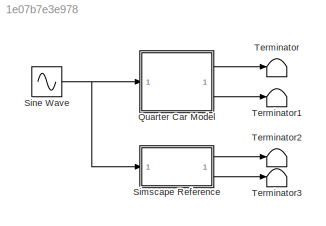
MODEL slx_1e07b7e3e978
KIND model
CONFIG AbsTol = auto
CONFIG EnableMultiTasking = off
CONFIG FixedStep = auto
CONFIG MaxStep = auto
CONFIG MinStep = auto
CONFIG RelTol = 1e-3
CONFIG SampleTimeConstraint = Unconstrained
CONFIG SolverName = VariableStepAuto
CONFIG StartTime = 0.0
CONFIG StopTime = 10.0
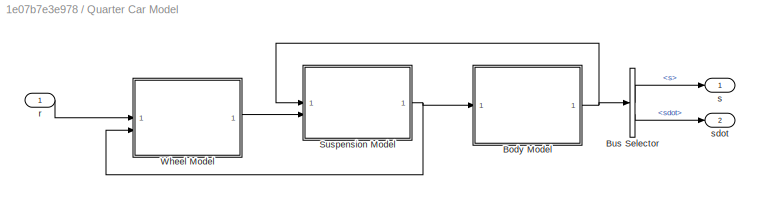
BLOCK [SubSystem] Quarter Car Model
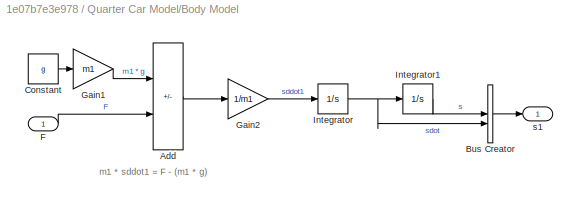
BLOCK [SubSystem] Quarter Car Model/Body Model
BLOCK [Sum] Quarter Car Model/Body Model/Add
  IconShape = rectangular
  Inputs = -+
BLOCK [BusCreator] Quarter Car Model/Body Model/Bus Creator
  DisplayOption = bar
  InheritFromInputs = on
  Inputs = 2
BLOCK [Constant] Quarter Car Model/Body Model/Constant
  Value = g
BLOCK [Inport] Quarter Car Model/Body Model/F
BLOCK [Gain] Quarter Car Model/Body Model/Gain1
  Gain = m1
BLOCK [Gain] Quarter Car Model/Body Model/Gain2
  Gain = 1/m1
BLOCK [Integrator] Quarter Car Model/Body Model/Integrator
BLOCK [Integrator] Quarter Car Model/Body Model/Integrator1
BLOCK [Outport] Quarter Car Model/Body Model/s1
BLOCK [BusSelector] Quarter Car Model/Bus Selector
  OutputSignals = s,sdot
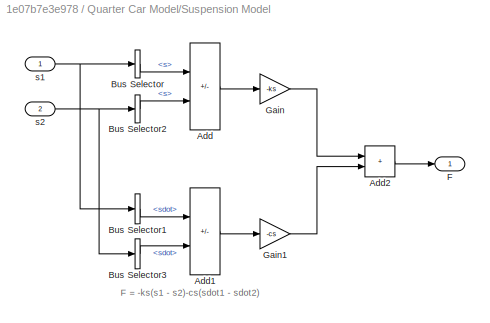
BLOCK [SubSystem] Quarter Car Model/Suspension Model
BLOCK [Sum] Quarter Car Model/Suspension Model/Add
  IconShape = rectangular
  Inputs = +-
BLOCK [Sum] Quarter Car Model/Suspension Model/Add1
  IconShape = rectangular
  Inputs = +-
BLOCK [Sum] Quarter Car Model/Suspension Model/Add2
  IconShape = rectangular
BLOCK [BusSelector] Quarter Car Model/Suspension Model/Bus Selector
  OutputSignals = s
BLOCK [BusSelector] Quarter Car Model/Suspension Model/Bus Selector1
  OutputSignals = sdot
BLOCK [BusSelector] Quarter Car Model/Suspension Model/Bus Selector2
  OutputSignals = s
BLOCK [BusSelector] Quarter Car Model/Suspension Model/Bus Selector3
  OutputSignals = sdot
BLOCK [Outport] Quarter Car Model/Suspension Model/F
BLOCK [Gain] Quarter Car Model/Suspension Model/Gain
  Gain = -ks
BLOCK [Gain] Quarter Car Model/Suspension Model/Gain1
  Gain = -cs
BLOCK [Inport] Quarter Car Model/Suspension Model/s1
BLOCK [Inport] Quarter Car Model/Suspension Model/s2
  Port = 2
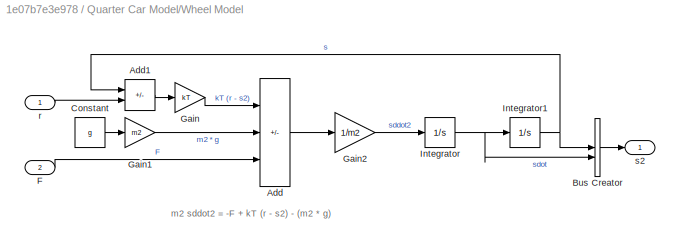
BLOCK [SubSystem] Quarter Car Model/Wheel Model
BLOCK [Sum] Quarter Car Model/Wheel Model/Add
  IconShape = rectangular
  Inputs = +--
BLOCK [Sum] Quarter Car Model/Wheel Model/Add1
  IconShape = rectangular
  Inputs = -+
BLOCK [BusCreator] Quarter Car Model/Wheel Model/Bus Creator
  DisplayOption = bar
  InheritFromInputs = on
  Inputs = 2
BLOCK [Constant] Quarter Car Model/Wheel Model/Constant
  Value = g
BLOCK [Inport] Quarter Car Model/Wheel Model/F
  Port = 2
BLOCK [Gain] Quarter Car Model/Wheel Model/Gain
  Gain = kT
BLOCK [Gain] Quarter Car Model/Wheel Model/Gain1
  Gain = m2
BLOCK [Gain] Quarter Car Model/Wheel Model/Gain2
  Gain = 1/m2
BLOCK [Integrator] Quarter Car Model/Wheel Model/Integrator
BLOCK [Integrator] Quarter Car Model/Wheel Model/Integrator1
BLOCK [Inport] Quarter Car Model/Wheel Model/r
BLOCK [Outport] Quarter Car Model/Wheel Model/s2
BLOCK [Inport] Quarter Car Model/r
BLOCK [Outport] Quarter Car Model/s
BLOCK [Outport] Quarter Car Model/sdot
  Port = 2
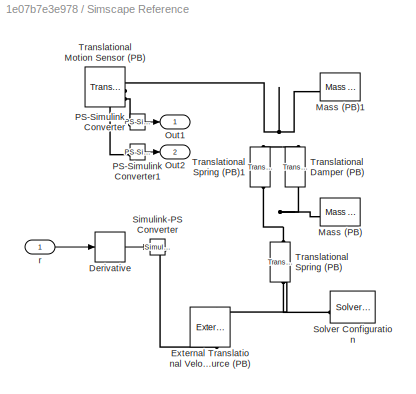
BLOCK [SubSystem] Simscape Reference
BLOCK [Derivative] Simscape Reference/Derivative
BLOCK [Reference] Simscape Reference/External Translational Velocity Source (PB)  REF=fl_lib/Translational/Sources/External
Translational
Velocity Source (PB)
  NameLocation = right
  SourceBlock = fl_lib/Translational/Sources/External\nTranslational\nVelocity Source (PB)
  SourceType = External\nTranslational\nVelocity Source (PB)
BLOCK [Reference] Simscape Reference/Mass (PB)  REF=fl_lib/Translational/Elements/Mass (PB)
  SourceBlock = fl_lib/Translational/Elements/Mass (PB)
  SourceType = Mass (PB)
BLOCK [Reference] Simscape Reference/Mass (PB)1  REF=fl_lib/Translational/Elements/Mass (PB)
  SourceBlock = fl_lib/Translational/Elements/Mass (PB)
  SourceType = Mass (PB)
BLOCK [Outport] Simscape Reference/Out1
BLOCK [Outport] Simscape Reference/Out2
  Port = 2
BLOCK [Reference] Simscape Reference/PS-Simulink Converter  REF=nesl_utility/PS-Simulink
Converter
  SourceBlock = nesl_utility/PS-Simulink\nConverter
  SourceType = PS-Simulink\nConverter
BLOCK [Reference] Simscape Reference/PS-Simulink Converter1  REF=nesl_utility/PS-Simulink
Converter
  SourceBlock = nesl_utility/PS-Simulink\nConverter
  SourceType = PS-Simulink\nConverter
BLOCK [Reference] Simscape Reference/Simulink-PS Converter  REF=nesl_utility/Simulink-PS
Converter
  SourceBlock = nesl_utility/Simulink-PS\nConverter
  SourceType = Simulink-PS\nConverter
BLOCK [Reference] Simscape Reference/Solver Configuration  REF=nesl_utility/Solver
Configuration
  NameLocation = top
  SourceBlock = nesl_utility/Solver\nConfiguration
  SourceType = Solver\nConfiguration
BLOCK [Reference] Simscape Reference/Translational Damper (PB)  REF=fl_lib/Translational/Elements/Translational Damper
(PB)
  NameLocation = left
  SourceBlock = fl_lib/Translational/Elements/Translational Damper\n(PB)
  SourceType = Translational Damper\n(PB)
BLOCK [Reference] Simscape Reference/Translational Motion Sensor (PB)  REF=fl_lib/Translational/Sensors/Translational Motion
Sensor (PB)
  SourceBlock = fl_lib/Translational/Sensors/Translational Motion\nSensor (PB)
  SourceType = Translational Motion\nSensor (PB)
BLOCK [Reference] Simscape Reference/Translational Spring (PB)  REF=fl_lib/Translational/Elements/Translational Spring
(PB)
  NameLocation = left
  SourceBlock = fl_lib/Translational/Elements/Translational Spring\n(PB)
  SourceType = Translational Spring\n(PB)
BLOCK [Reference] Simscape Reference/Translational Spring (PB)1  REF=fl_lib/Translational/Elements/Translational Spring
(PB)
  NameLocation = left
  SourceBlock = fl_lib/Translational/Elements/Translational Spring\n(PB)
  SourceType = Translational Spring\n(PB)
BLOCK [Inport] Simscape Reference/r
BLOCK [Sin] Sine Wave
  SampleTime = 0
BLOCK [Terminator] Terminator
BLOCK [Terminator] Terminator1
BLOCK [Terminator] Terminator2
BLOCK [Terminator] Terminator3
ANNOTATION Quarter Car Model/Body Model: m1 * sddot1 = F - (m1 * g)
ANNOTATION Quarter Car Model/Suspension Model: F = -ks(s1 - s2)-cs(sdot1 - sdot2)
ANNOTATION Quarter Car Model/Wheel Model: m2 sddot2 = -F + kT (r - s2) - (m2 * g)
LINE Quarter Car Model/Body Model/Add:1 -> Quarter Car Model/Body Model/Gain2:1
LINE Quarter Car Model/Body Model/Bus Creator:1 -> Quarter Car Model/Body Model/s1:1
LINE Quarter Car Model/Body Model/Constant:1 -> Quarter Car Model/Body Model/Gain1:1
LINE Quarter Car Model/Body Model/F:1 -> Quarter Car Model/Body Model/Add:2
LINE Quarter Car Model/Body Model/Gain1:1 -> Quarter Car Model/Body Model/Add:1
LINE Quarter Car Model/Body Model/Gain2:1 -> Quarter Car Model/Body Model/Integrator:1
LINE Quarter Car Model/Body Model/Integrator1:1 -> Quarter Car Model/Body Model/Bus Creator:1
NET Quarter Car Model/Body Model/Integrator:1 -> Quarter Car Model/Body Model/Bus Creator:2, Quarter Car Model/Body Model/Integrator1:1
NET Quarter Car Model/Body Model:1 -> Quarter Car Model/Bus Selector:1, Quarter Car Model/Suspension Model:1
LINE Quarter Car Model/Bus Selector:1 -> Quarter Car Model/s:1
LINE Quarter Car Model/Bus Selector:2 -> Quarter Car Model/sdot:1
LINE Quarter Car Model/Suspension Model/Add1:1 -> Quarter Car Model/Suspension Model/Gain1:1
LINE Quarter Car Model/Suspension Model/Add2:1 -> Quarter Car Model/Suspension Model/F:1
LINE Quarter Car Model/Suspension Model/Add:1 -> Quarter Car Model/Suspension Model/Gain:1
LINE Quarter Car Model/Suspension Model/Bus Selector1:1 -> Quarter Car Model/Suspension Model/Add1:1
LINE Quarter Car Model/Suspension Model/Bus Selector2:1 -> Quarter Car Model/Suspension Model/Add:2
LINE Quarter Car Model/Suspension Model/Bus Selector3:1 -> Quarter Car Model/Suspension Model/Add1:2
LINE Quarter Car Model/Suspension Model/Bus Selector:1 -> Quarter Car Model/Suspension Model/Add:1
LINE Quarter Car Model/Suspension Model/Gain1:1 -> Quarter Car Model/Suspension Model/Add2:2
LINE Quarter Car Model/Suspension Model/Gain:1 -> Quarter Car Model/Suspension Model/Add2:1
NET Quarter Car Model/Suspension Model/s1:1 -> Quarter Car Model/Suspension Model/Bus Selector1:1, Quarter Car Model/Suspension Model/Bus Selector:1
NET Quarter Car Model/Suspension Model/s2:1 -> Quarter Car Model/Suspension Model/Bus Selector2:1, Quarter Car Model/Suspension Model/Bus Selector3:1
NET Quarter Car Model/Suspension Model:1 -> Quarter Car Model/Body Model:1, Quarter Car Model/Wheel Model:2
LINE Quarter Car Model/Wheel Model/Add1:1 -> Quarter Car Model/Wheel Model/Gain:1
LINE Quarter Car Model/Wheel Model/Add:1 -> Quarter Car Model/Wheel Model/Gain2:1
LINE Quarter Car Model/Wheel Model/Bus Creator:1 -> Quarter Car Model/Wheel Model/s2:1
LINE Quarter Car Model/Wheel Model/Constant:1 -> Quarter Car Model/Wheel Model/Gain1:1
LINE Quarter Car Model/Wheel Model/F:1 -> Quarter Car Model/Wheel Model/Add:3
LINE Quarter Car Model/Wheel Model/Gain1:1 -> Quarter Car Model/Wheel Model/Add:2
LINE Quarter Car Model/Wheel Model/Gain2:1 -> Quarter Car Model/Wheel Model/Integrator:1
LINE Quarter Car Model/Wheel Model/Gain:1 -> Quarter Car Model/Wheel Model/Add:1
NET Quarter Car Model/Wheel Model/Integrator1:1 -> Quarter Car Model/Wheel Model/Add1:1, Quarter Car Model/Wheel Model/Bus Creator:1
NET Quarter Car Model/Wheel Model/Integrator:1 -> Quarter Car Model/Wheel Model/Bus Creator:2, Quarter Car Model/Wheel Model/Integrator1:1
LINE Quarter Car Model/Wheel Model/r:1 -> Quarter Car Model/Wheel Model/Add1:2
LINE Quarter Car Model/Wheel Model:1 -> Quarter Car Model/Suspension Model:2
LINE Quarter Car Model/r:1 -> Quarter Car Model/Wheel Model:1
LINE Quarter Car Model:1 -> Terminator:1
LINE Quarter Car Model:2 -> Terminator1:1
LINE Simscape Reference/Derivative:1 -> Simscape Reference/Simulink-PS Converter:1
LINE Simscape Reference/PS-Simulink Converter1:1 -> Simscape Reference/Out2:1
LINE Simscape Reference/PS-Simulink Converter:1 -> Simscape Reference/Out1:1
LINE Simscape Reference/r:1 -> Simscape Reference/Derivative:1
LINE Simscape Reference:1 -> Terminator2:1
LINE Simscape Reference:2 -> Terminator3:1
NET Sine Wave:1 -> Quarter Car Model:1, Simscape Reference:1
PLINE Simscape Reference/External Translational Velocity Source (PB):LConn1 -- Simscape Reference/Simulink-PS Converter:RConn1
PNET net1: Simscape Reference/External Translational Velocity Source (PB):RConn1 -- Simscape Reference/Solver Configuration:RConn1 -- Simscape Reference/Translational Spring (PB):RConn1
PNET net2: Simscape Reference/Mass (PB)1:LConn1 -- Simscape Reference/Translational Damper (PB):LConn1 -- Simscape Reference/Translational Motion Sensor (PB):RConn1 -- Simscape Reference/Translational Spring (PB)1:LConn1
PNET net3: Simscape Reference/Mass (PB):LConn1 -- Simscape Reference/Translational Damper (PB):RConn1 -- Simscape Reference/Translational Spring (PB)1:RConn1 -- Simscape Reference/Translational Spring (PB):LConn1
PLINE Simscape Reference/PS-Simulink Converter1:LConn1 -- Simscape Reference/Translational Motion Sensor (PB):RConn2
PLINE Simscape Reference/PS-Simulink Converter:LConn1 -- Simscape Reference/Translational Motion Sensor (PB):RConn3
note: NET lines group one-source signal fan-out (src -> all destinations, sorted); 1:1 wires keep LINE; PNET lines group multi-terminal physical nets as a canonical sorted terminal list (undirected conserving connections); 2-terminal nets keep the pairwise PLINE form
